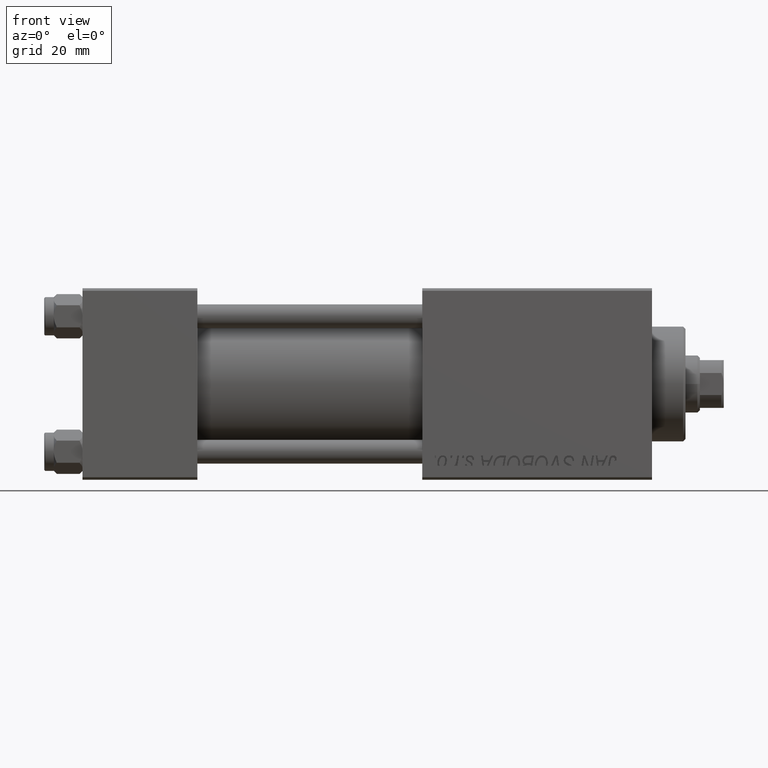
[diagram: clean part render]
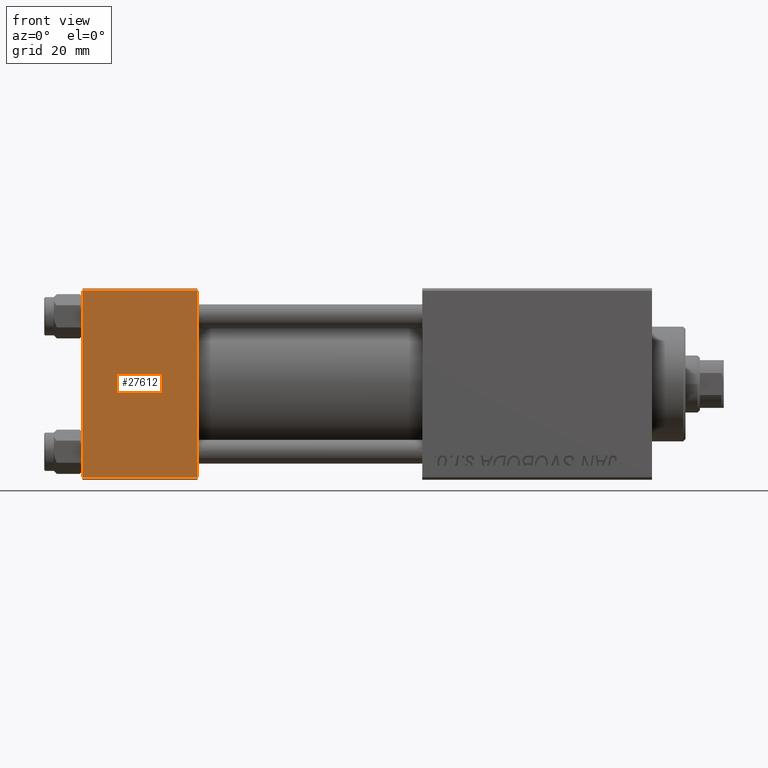
[diagram: same view with one face highlighted and labeled with its STEP entity id]
A machine part, front view. The second image highlights one B-rep face of the part: STEP entity #27612.
In plain terms, the highlighted planar face has unit normal (0, 1, 0).
Its self-contained STEP definition (entity closure, byte-faithful):
#86 = CARTESIAN_POINT ( 'NONE',  ( 24.00000000000000000, -20.00000000000000355, 19.49999999999998224 ) ) ;
#1540 = CARTESIAN_POINT ( 'NONE',  ( 0.000000000000000000, -20.00000000000000355, 19.49999999999998224 ) ) ;
#3219 = LINE ( 'NONE', #7799, #26669 ) ;
#3853 = CARTESIAN_POINT ( 'NONE',  ( 0.000000000000000000, -20.00000000000000000, -19.49999999999999645 ) ) ;
#4871 = CARTESIAN_POINT ( 'NONE',  ( 24.00000000000000000, -20.00000000000000355, 19.99999999999998934 ) ) ;
#6884 = DIRECTION ( 'NONE',  ( 0.000000000000000000, -8.673617379884036705E-17, 1.000000000000000000 ) ) ;
#7417 = DIRECTION ( 'NONE',  ( 0.000000000000000000, 8.673617379884036705E-17, -1.000000000000000000 ) ) ;
#7799 = CARTESIAN_POINT ( 'NONE',  ( 0.000000000000000000, -20.00000000000000355, 19.99999999999998934 ) ) ;
#10198 = ORIENTED_EDGE ( 'NONE', *, *, #15765, .F. ) ;
#10418 = EDGE_CURVE ( 'NONE', #44547, #17316, #3219, .T. ) ;
#11336 = DIRECTION ( 'NONE',  ( 0.000000000000000000, 8.673617379884036705E-17, -1.000000000000000000 ) ) ;
#12437 = CARTESIAN_POINT ( 'NONE',  ( 24.00000000000000000, -20.00000000000000355, 19.49999999999998224 ) ) ;
#12515 = VECTOR ( 'NONE', #31479, 1000.000000000000000 ) ;
#12985 = FACE_OUTER_BOUND ( 'NONE', #25999, .T. ) ;
#15765 = EDGE_CURVE ( 'NONE', #27892, #26947, #19094, .T. ) ;
#16046 = LINE ( 'NONE', #86, #12515 ) ;
#16116 = LINE ( 'NONE', #35869, #34466 ) ;
#16386 = ORIENTED_EDGE ( 'NONE', *, *, #28649, .T. ) ;
#17316 = VERTEX_POINT ( 'NONE', #3853 ) ;
#17419 = AXIS2_PLACEMENT_3D ( 'NONE', #4871, #48969, #6884 ) ;
#19094 = LINE ( 'NONE', #26921, #46305 ) ;
#20120 = ORIENTED_EDGE ( 'NONE', *, *, #10418, .T. ) ;
#25999 = EDGE_LOOP ( 'NONE', ( #20120, #16386, #10198, #44614 ) ) ;
#26669 = VECTOR ( 'NONE', #11336, 1000.000000000000000 ) ;
#26921 = CARTESIAN_POINT ( 'NONE',  ( 24.00000000000000000, -20.00000000000000355, 19.99999999999998934 ) ) ;
#26947 = VERTEX_POINT ( 'NONE', #30414 ) ;
#27612 = ADVANCED_FACE ( 'NONE', ( #12985 ), #40117, .F. ) ;
#27892 = VERTEX_POINT ( 'NONE', #12437 ) ;
#28649 = EDGE_CURVE ( 'NONE', #17316, #26947, #16116, .T. ) ;
#30414 = CARTESIAN_POINT ( 'NONE',  ( 24.00000000000000000, -20.00000000000000000, -19.49999999999999645 ) ) ;
#31479 = DIRECTION ( 'NONE',  ( -1.000000000000000000, 0.000000000000000000, 0.000000000000000000 ) ) ;
#31556 = DIRECTION ( 'NONE',  ( 1.000000000000000000, 0.000000000000000000, 0.000000000000000000 ) ) ;
#34466 = VECTOR ( 'NONE', #31556, 1000.000000000000000 ) ;
#35869 = CARTESIAN_POINT ( 'NONE',  ( 24.00000000000000000, -20.00000000000000000, -19.49999999999999645 ) ) ;
#40117 = PLANE ( 'NONE',  #17419 ) ;
#43567 = EDGE_CURVE ( 'NONE', #27892, #44547, #16046, .T. ) ;
#44547 = VERTEX_POINT ( 'NONE', #1540 ) ;
#44614 = ORIENTED_EDGE ( 'NONE', *, *, #43567, .T. ) ;
#46305 = VECTOR ( 'NONE', #7417, 1000.000000000000000 ) ;
#48969 = DIRECTION ( 'NONE',  ( -0.000000000000000000, 1.000000000000000000, 8.673617379884036705E-17 ) ) ;